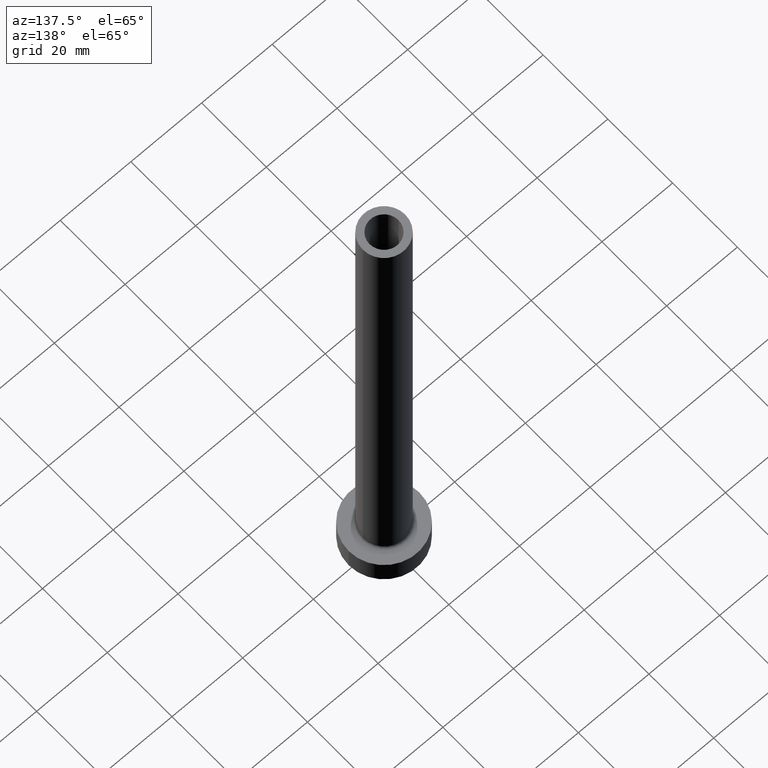
[diagram: clean part render]
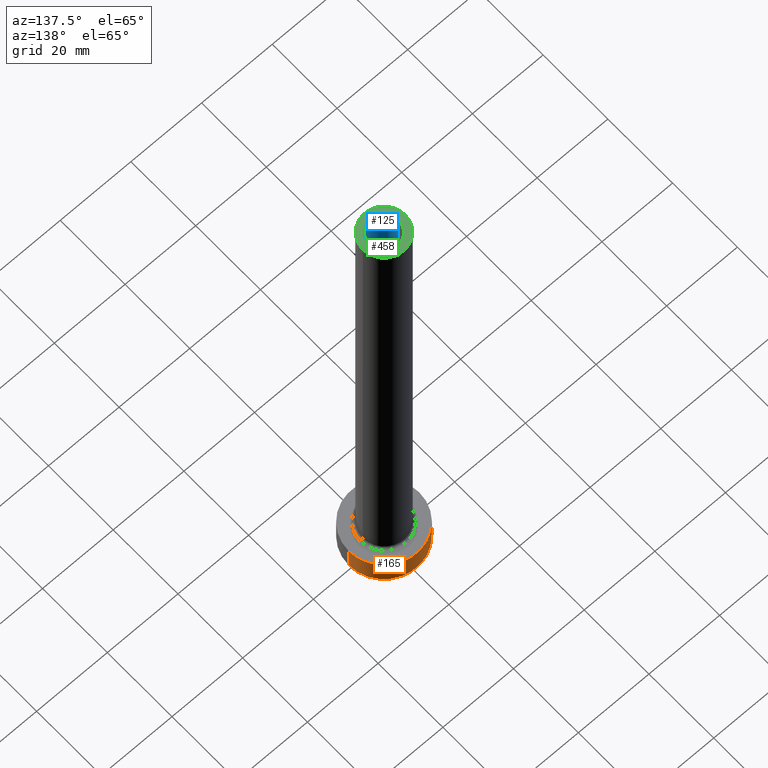
[diagram: same view with three faces highlighted in distinct colors, each labeled with its STEP entity id]
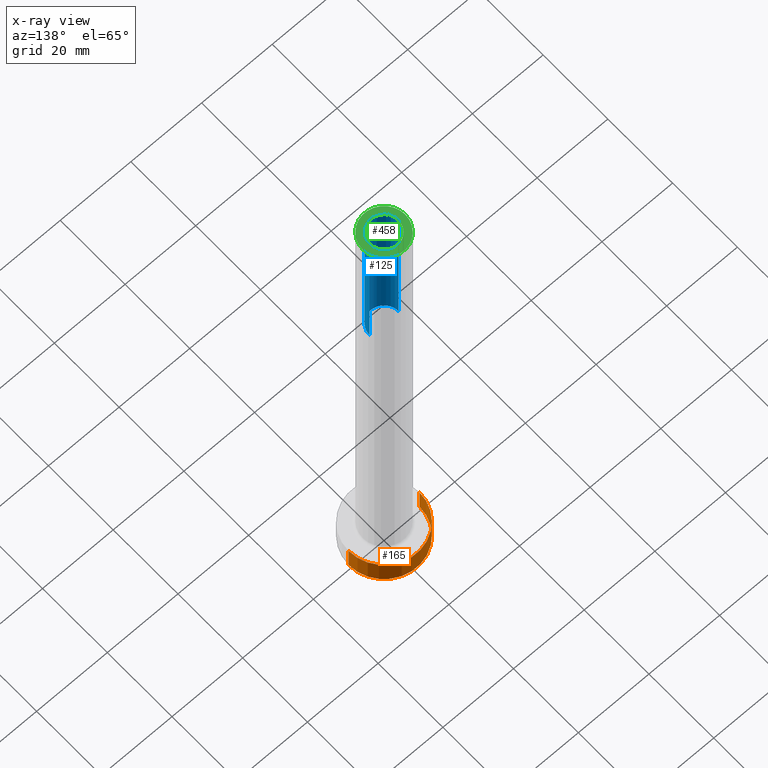
[diagram: x-ray of the same camera — body ghosted, the three highlighted faces saturated]
A machine part, auxiliary view with three faces highlighted in distinct colors.
The next image is the same camera in x-ray (body ghosted, the three faces saturated) — at least one of them is partly hidden behind the body in this view.
Their STEP definitions:

[orange] entity #165 — the highlighted cylindrical surface (partial cylindrical patch) has radius 10 mm, axis along (-0, -0, -1).
#1 = CARTESIAN_POINT ( 'NONE',  ( 10.00000000000000000, 1.224646799147353256E-15, 7.000000000000000000 ) ) ;
#36 = DIRECTION ( 'NONE',  ( -1.000000000000000000, 0.000000000000000000, 0.000000000000000000 ) ) ;
#38 = CYLINDRICAL_SURFACE ( 'NONE', #257, 10.00000000000000000 ) ;
#42 = CARTESIAN_POINT ( 'NONE',  ( 10.00000000000000000, 1.224646799147353256E-15, 7.000000000000000000 ) ) ;
#61 = ORIENTED_EDGE ( 'NONE', *, *, #348, .T. ) ;
#80 = LINE ( 'NONE', #1, #457 ) ;
#83 = CIRCLE ( 'NONE', #194, 10.00000000000000000 ) ;
#86 = EDGE_CURVE ( 'NONE', #341, #160, #83, .T. ) ;
#109 = FACE_OUTER_BOUND ( 'NONE', #204, .T. ) ;
#160 = VERTEX_POINT ( 'NONE', #400 ) ;
#165 = ADVANCED_FACE ( 'NONE', ( #109 ), #38, .T. ) ;
#168 = ORIENTED_EDGE ( 'NONE', *, *, #334, .F. ) ;
#179 = LINE ( 'NONE', #212, #450 ) ;
#187 = DIRECTION ( 'NONE',  ( 1.000000000000000000, 0.000000000000000000, 0.000000000000000000 ) ) ;
#194 = AXIS2_PLACEMENT_3D ( 'NONE', #376, #378, #269 ) ;
#204 = EDGE_LOOP ( 'NONE', ( #447, #227, #61, #168 ) ) ;
#209 = CIRCLE ( 'NONE', #273, 10.00000000000000000 ) ;
#212 = CARTESIAN_POINT ( 'NONE',  ( -10.00000000000000000, 0.000000000000000000, 7.000000000000000000 ) ) ;
#217 = CARTESIAN_POINT ( 'NONE',  ( 0.000000000000000000, 0.000000000000000000, 0.000000000000000000 ) ) ;
#227 = ORIENTED_EDGE ( 'NONE', *, *, #290, .T. ) ;
#248 = DIRECTION ( 'NONE',  ( -0.000000000000000000, -0.000000000000000000, -1.000000000000000000 ) ) ;
#249 = DIRECTION ( 'NONE',  ( -0.000000000000000000, -0.000000000000000000, -1.000000000000000000 ) ) ;
#257 = AXIS2_PLACEMENT_3D ( 'NONE', #360, #248, #36 ) ;
#269 = DIRECTION ( 'NONE',  ( 1.000000000000000000, 0.000000000000000000, 0.000000000000000000 ) ) ;
#273 = AXIS2_PLACEMENT_3D ( 'NONE', #217, #398, #187 ) ;
#287 = DIRECTION ( 'NONE',  ( -0.000000000000000000, -0.000000000000000000, -1.000000000000000000 ) ) ;
#290 = EDGE_CURVE ( 'NONE', #341, #305, #80, .T. ) ;
#305 = VERTEX_POINT ( 'NONE', #359 ) ;
#331 = CARTESIAN_POINT ( 'NONE',  ( -10.00000000000000000, 0.000000000000000000, 0.000000000000000000 ) ) ;
#334 = EDGE_CURVE ( 'NONE', #160, #421, #179, .T. ) ;
#341 = VERTEX_POINT ( 'NONE', #42 ) ;
#348 = EDGE_CURVE ( 'NONE', #305, #421, #209, .T. ) ;
#359 = CARTESIAN_POINT ( 'NONE',  ( 10.00000000000000000, 1.224646799147353256E-15, 0.000000000000000000 ) ) ;
#360 = CARTESIAN_POINT ( 'NONE',  ( 0.000000000000000000, 0.000000000000000000, 7.000000000000000000 ) ) ;
#376 = CARTESIAN_POINT ( 'NONE',  ( 0.000000000000000000, 0.000000000000000000, 7.000000000000000000 ) ) ;
#378 = DIRECTION ( 'NONE',  ( 0.000000000000000000, 0.000000000000000000, 1.000000000000000000 ) ) ;
#398 = DIRECTION ( 'NONE',  ( 0.000000000000000000, 0.000000000000000000, 1.000000000000000000 ) ) ;
#400 = CARTESIAN_POINT ( 'NONE',  ( -10.00000000000000000, 0.000000000000000000, 7.000000000000000000 ) ) ;
#421 = VERTEX_POINT ( 'NONE', #331 ) ;
#447 = ORIENTED_EDGE ( 'NONE', *, *, #86, .F. ) ;
#450 = VECTOR ( 'NONE', #287, 1000.000000000000000 ) ;
#457 = VECTOR ( 'NONE', #249, 1000.000000000000000 ) ;

[blue] entity #125 — the highlighted cylindrical surface (edge-blend (fillet) strip) has radius 4.1 mm, axis along (0, 0, -1).
#2 = DIRECTION ( 'NONE',  ( -1.000000000000000000, 0.000000000000000000, 0.000000000000000000 ) ) ;
#35 = CARTESIAN_POINT ( 'NONE',  ( 0.000000000000000000, 0.000000000000000000, 105.0000000000000000 ) ) ;
#40 = EDGE_CURVE ( 'NONE', #256, #225, #338, .T. ) ;
#53 = EDGE_CURVE ( 'NONE', #256, #277, #445, .T. ) ;
#73 = DIRECTION ( 'NONE',  ( 0.000000000000000000, 0.000000000000000000, 1.000000000000000000 ) ) ;
#106 = CARTESIAN_POINT ( 'NONE',  ( 0.000000000000000000, 0.000000000000000000, 150.0000000000000000 ) ) ;
#120 = VECTOR ( 'NONE', #460, 1000.000000000000000 ) ;
#123 = VECTOR ( 'NONE', #275, 1000.000000000000000 ) ;
#125 = ADVANCED_FACE ( 'NONE', ( #461 ), #423, .F. ) ;
#131 = DIRECTION ( 'NONE',  ( 1.000000000000000000, 0.000000000000000000, 0.000000000000000000 ) ) ;
#149 = LINE ( 'NONE', #322, #120 ) ;
#172 = CARTESIAN_POINT ( 'NONE',  ( -4.099999999999999645, 0.000000000000000000, 150.0000000000000000 ) ) ;
#175 = DIRECTION ( 'NONE',  ( 1.000000000000000000, 0.000000000000000000, 0.000000000000000000 ) ) ;
#200 = CARTESIAN_POINT ( 'NONE',  ( -4.099999999999999645, 0.000000000000000000, 150.0000000000000000 ) ) ;
#225 = VERTEX_POINT ( 'NONE', #321 ) ;
#235 = EDGE_LOOP ( 'NONE', ( #337, #409, #239, #302 ) ) ;
#236 = CARTESIAN_POINT ( 'NONE',  ( 0.000000000000000000, 0.000000000000000000, 150.0000000000000000 ) ) ;
#239 = ORIENTED_EDGE ( 'NONE', *, *, #311, .F. ) ;
#243 = DIRECTION ( 'NONE',  ( 0.000000000000000000, 0.000000000000000000, -1.000000000000000000 ) ) ;
#256 = VERTEX_POINT ( 'NONE', #172 ) ;
#275 = DIRECTION ( 'NONE',  ( 0.000000000000000000, 0.000000000000000000, -1.000000000000000000 ) ) ;
#277 = VERTEX_POINT ( 'NONE', #402 ) ;
#302 = ORIENTED_EDGE ( 'NONE', *, *, #53, .F. ) ;
#311 = EDGE_CURVE ( 'NONE', #277, #403, #406, .T. ) ;
#312 = DIRECTION ( 'NONE',  ( 0.000000000000000000, 0.000000000000000000, 1.000000000000000000 ) ) ;
#321 = CARTESIAN_POINT ( 'NONE',  ( 4.099999999999999645, 5.021051876504146399E-16, 150.0000000000000000 ) ) ;
#322 = CARTESIAN_POINT ( 'NONE',  ( 4.099999999999999645, 5.021051876504146399E-16, 150.0000000000000000 ) ) ;
#324 = CARTESIAN_POINT ( 'NONE',  ( 4.099999999999999645, 5.021051876504146399E-16, 105.0000000000000000 ) ) ;
#327 = EDGE_CURVE ( 'NONE', #225, #403, #149, .T. ) ;
#337 = ORIENTED_EDGE ( 'NONE', *, *, #40, .T. ) ;
#338 = CIRCLE ( 'NONE', #411, 4.099999999999999645 ) ;
#402 = CARTESIAN_POINT ( 'NONE',  ( -4.099999999999999645, 0.000000000000000000, 105.0000000000000000 ) ) ;
#403 = VERTEX_POINT ( 'NONE', #324 ) ;
#406 = CIRCLE ( 'NONE', #433, 4.099999999999999645 ) ;
#409 = ORIENTED_EDGE ( 'NONE', *, *, #327, .T. ) ;
#411 = AXIS2_PLACEMENT_3D ( 'NONE', #236, #312, #131 ) ;
#423 = CYLINDRICAL_SURFACE ( 'NONE', #456, 4.099999999999999645 ) ;
#433 = AXIS2_PLACEMENT_3D ( 'NONE', #35, #73, #175 ) ;
#445 = LINE ( 'NONE', #200, #123 ) ;
#456 = AXIS2_PLACEMENT_3D ( 'NONE', #106, #243, #2 ) ;
#460 = DIRECTION ( 'NONE',  ( 0.000000000000000000, 0.000000000000000000, -1.000000000000000000 ) ) ;
#461 = FACE_OUTER_BOUND ( 'NONE', #235, .T. ) ;

[green] entity #458 — the highlighted planar face has unit normal (0, 0, 1).
#5 = DIRECTION ( 'NONE',  ( 1.000000000000000000, 0.000000000000000000, 0.000000000000000000 ) ) ;
#17 = EDGE_LOOP ( 'NONE', ( #98, #190 ) ) ;
#40 = EDGE_CURVE ( 'NONE', #256, #225, #338, .T. ) ;
#41 = DIRECTION ( 'NONE',  ( 0.000000000000000000, 0.000000000000000000, 1.000000000000000000 ) ) ;
#76 = CARTESIAN_POINT ( 'NONE',  ( 0.000000000000000000, 0.000000000000000000, 150.0000000000000000 ) ) ;
#78 = EDGE_CURVE ( 'NONE', #225, #256, #232, .T. ) ;
#91 = AXIS2_PLACEMENT_3D ( 'NONE', #76, #432, #111 ) ;
#98 = ORIENTED_EDGE ( 'NONE', *, *, #40, .F. ) ;
#111 = DIRECTION ( 'NONE',  ( 1.000000000000000000, 0.000000000000000000, 0.000000000000000000 ) ) ;
#127 = DIRECTION ( 'NONE',  ( 0.000000000000000000, 0.000000000000000000, 1.000000000000000000 ) ) ;
#128 = DIRECTION ( 'NONE',  ( 1.000000000000000000, 0.000000000000000000, 0.000000000000000000 ) ) ;
#131 = DIRECTION ( 'NONE',  ( 1.000000000000000000, 0.000000000000000000, 0.000000000000000000 ) ) ;
#132 = AXIS2_PLACEMENT_3D ( 'NONE', #328, #41, #5 ) ;
#150 = CARTESIAN_POINT ( 'NONE',  ( 0.000000000000000000, 0.000000000000000000, 150.0000000000000000 ) ) ;
#156 = VERTEX_POINT ( 'NONE', #285 ) ;
#172 = CARTESIAN_POINT ( 'NONE',  ( -4.099999999999999645, 0.000000000000000000, 150.0000000000000000 ) ) ;
#182 = CARTESIAN_POINT ( 'NONE',  ( -6.000000000000000888, 0.000000000000000000, 150.0000000000000000 ) ) ;
#188 = FACE_BOUND ( 'NONE', #17, .T. ) ;
#190 = ORIENTED_EDGE ( 'NONE', *, *, #78, .F. ) ;
#218 = DIRECTION ( 'NONE',  ( 0.000000000000000000, 0.000000000000000000, 1.000000000000000000 ) ) ;
#225 = VERTEX_POINT ( 'NONE', #321 ) ;
#232 = CIRCLE ( 'NONE', #448, 4.099999999999999645 ) ;
#236 = CARTESIAN_POINT ( 'NONE',  ( 0.000000000000000000, 0.000000000000000000, 150.0000000000000000 ) ) ;
#246 = PLANE ( 'NONE',  #379 ) ;
#255 = CIRCLE ( 'NONE', #91, 6.000000000000000888 ) ;
#256 = VERTEX_POINT ( 'NONE', #172 ) ;
#259 = EDGE_CURVE ( 'NONE', #156, #349, #264, .T. ) ;
#264 = CIRCLE ( 'NONE', #132, 6.000000000000000888 ) ;
#285 = CARTESIAN_POINT ( 'NONE',  ( 6.000000000000000888, 7.347880794884120722E-16, 150.0000000000000000 ) ) ;
#299 = ORIENTED_EDGE ( 'NONE', *, *, #368, .T. ) ;
#310 = EDGE_LOOP ( 'NONE', ( #299, #442 ) ) ;
#312 = DIRECTION ( 'NONE',  ( 0.000000000000000000, 0.000000000000000000, 1.000000000000000000 ) ) ;
#321 = CARTESIAN_POINT ( 'NONE',  ( 4.099999999999999645, 5.021051876504146399E-16, 150.0000000000000000 ) ) ;
#328 = CARTESIAN_POINT ( 'NONE',  ( 0.000000000000000000, 0.000000000000000000, 150.0000000000000000 ) ) ;
#336 = FACE_OUTER_BOUND ( 'NONE', #310, .T. ) ;
#338 = CIRCLE ( 'NONE', #411, 4.099999999999999645 ) ;
#349 = VERTEX_POINT ( 'NONE', #182 ) ;
#366 = DIRECTION ( 'NONE',  ( 1.000000000000000000, 0.000000000000000000, -0.000000000000000000 ) ) ;
#368 = EDGE_CURVE ( 'NONE', #349, #156, #255, .T. ) ;
#379 = AXIS2_PLACEMENT_3D ( 'NONE', #150, #218, #366 ) ;
#411 = AXIS2_PLACEMENT_3D ( 'NONE', #236, #312, #131 ) ;
#432 = DIRECTION ( 'NONE',  ( 0.000000000000000000, 0.000000000000000000, 1.000000000000000000 ) ) ;
#442 = ORIENTED_EDGE ( 'NONE', *, *, #259, .T. ) ;
#446 = CARTESIAN_POINT ( 'NONE',  ( 0.000000000000000000, 0.000000000000000000, 150.0000000000000000 ) ) ;
#448 = AXIS2_PLACEMENT_3D ( 'NONE', #446, #127, #128 ) ;
#458 = ADVANCED_FACE ( 'NONE', ( #188, #336 ), #246, .T. ) ;